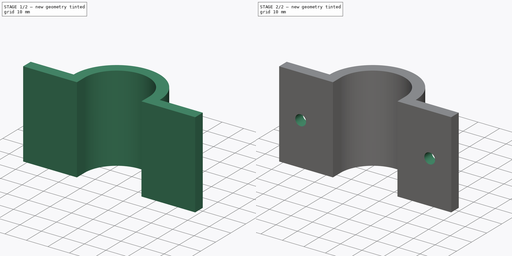
[diagram: build sequence overview — one tinted view per stage of 2, left to right]
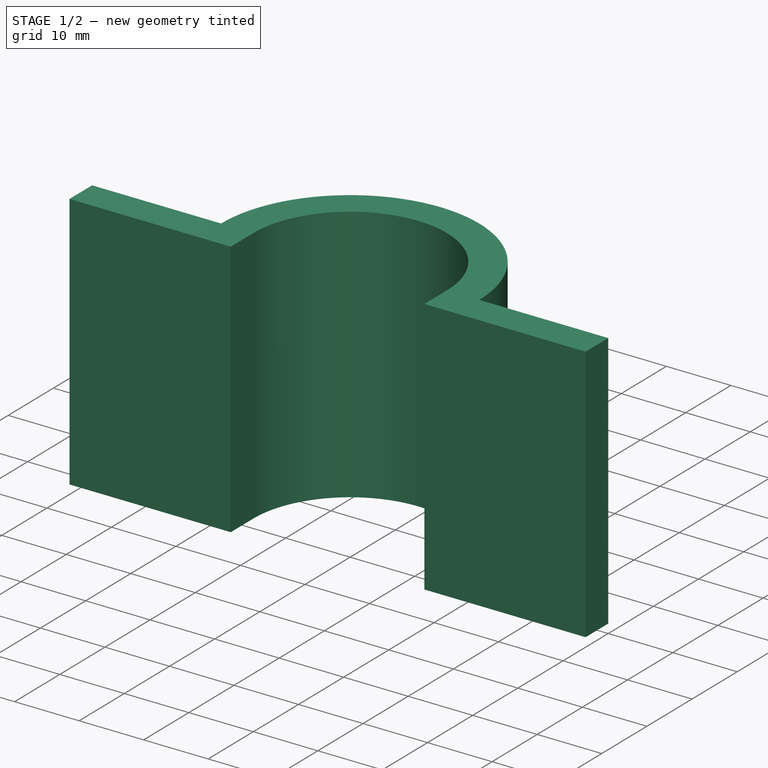
[diagram: stage 1 of 2 — iso view after this stage's code; geometry added in this stage tinted green]
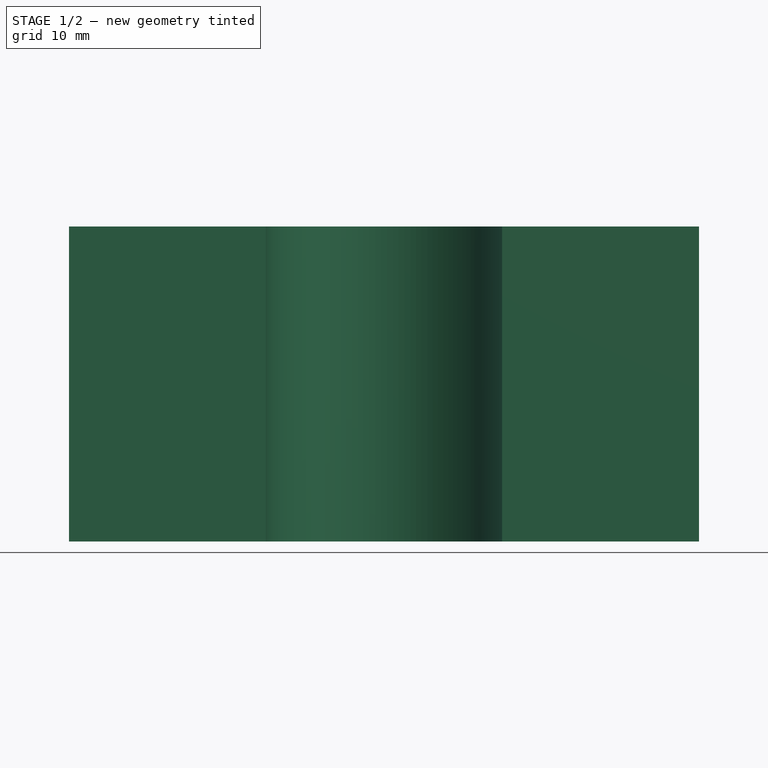
[diagram: stage 1 of 2 — front view after this stage's code; geometry added in this stage tinted green]
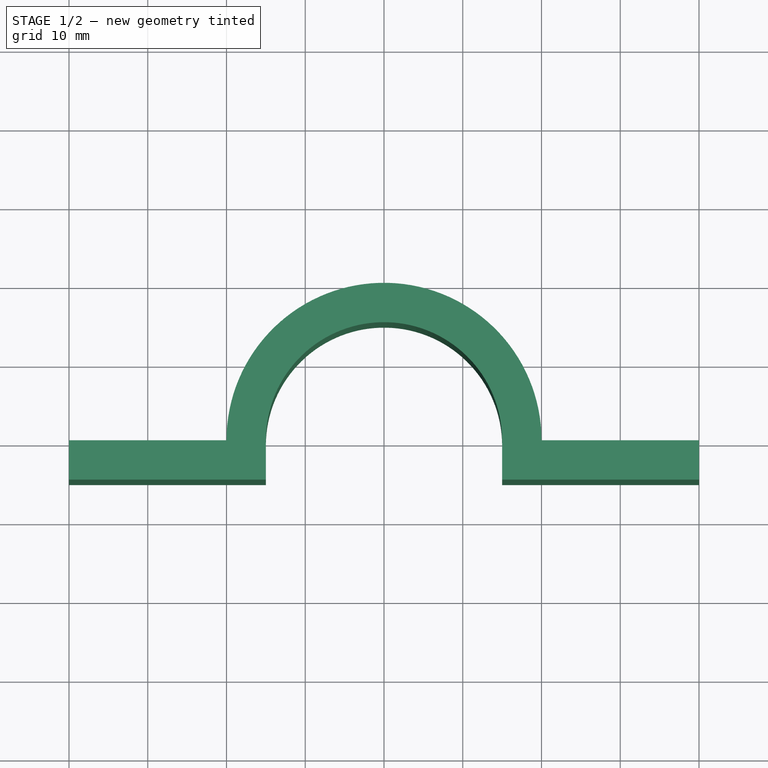
[diagram: stage 1 of 2 — top view after this stage's code; geometry added in this stage tinted green]
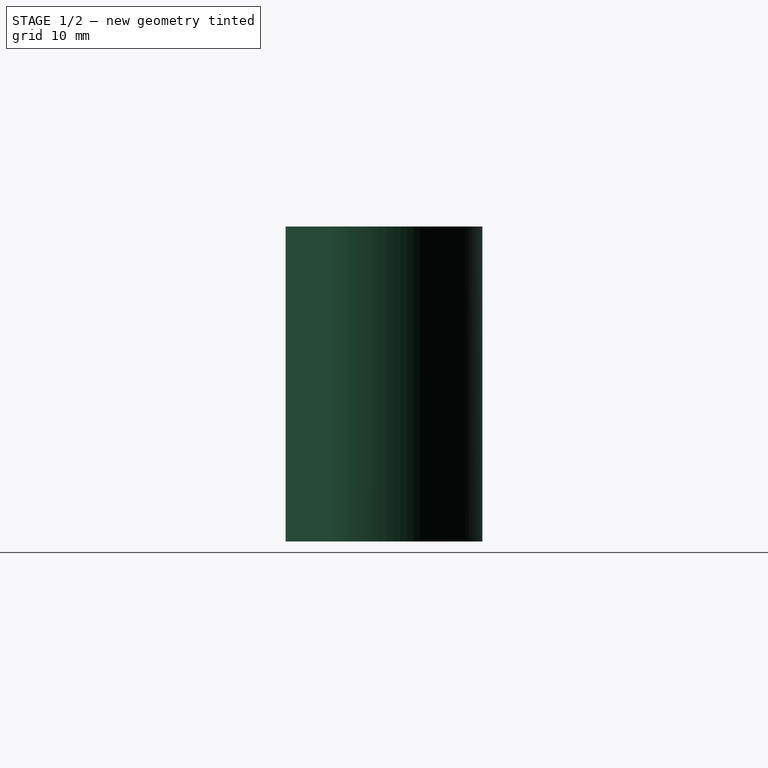
[diagram: stage 1 of 2 — right view after this stage's code; geometry added in this stage tinted green]
FCSTD DOCUMENT  (FreeCAD 0.21R33694 (Git))
Label: OJT1_T21P01.pecca
License: All rights reserved
LicenseURL: http://en.wikipedia.org/wiki/All_rights_reserved
objects: Sketcher::SketchObject×2, PartDesign::Pad×1, PartDesign::Pocket×1, PartDesign::Body×1, App::Part×1
note: 7 computed .brp shape members not serialized (recipe doc carries the construction recipe); baked Part::Feature solids carry a one-line shape summary decoded from their .brp

FEATURE [Sketcher::SketchObject] Sketch
  FullyConstrained = true
  MapMode = 5
  Support = -> [XY_Plane001]
  sketch-geometry (11):
    g0: ArcOfCircle CenterX=0 CenterY=0 CenterZ=0 NormalX=0 NormalY=0 NormalZ=1 AngleXU=0 Radius=15 StartAngle=0 EndAngle=3.14159
    g1: ArcOfCircle CenterX=0 CenterY=0 CenterZ=0 NormalX=0 NormalY=0 NormalZ=1 AngleXU=0 Radius=20 StartAngle=2e-16 EndAngle=3.14159
    g2: LineSegment StartX=20 StartY=3.7e-15 StartZ=0 EndX=40 EndY=3.7e-15 EndZ=0
    g3: LineSegment StartX=-20 StartY=0 StartZ=0 EndX=-40 EndY=0 EndZ=0
    g4: LineSegment StartX=-40 StartY=0 StartZ=0 EndX=-40 EndY=-5 EndZ=0
    g5: LineSegment StartX=-40 StartY=-5 StartZ=0 EndX=-15 EndY=-5 EndZ=0
    g6: LineSegment StartX=40 StartY=3.7e-15 StartZ=0 EndX=40 EndY=-5 EndZ=0
    g7: LineSegment StartX=40 StartY=-5 StartZ=0 EndX=15 EndY=-5 EndZ=0
    g8: LineSegment StartX=-15 StartY=-5 StartZ=0 EndX=-15 EndY=-4.4e-15 EndZ=0
    g9: LineSegment StartX=15 StartY=-5 StartZ=0 EndX=15 EndY=0 EndZ=0
    g10: LineSegment StartX=-15 StartY=-4.8e-15 StartZ=0 EndX=-20 EndY=0 EndZ=0
  constraints (30):
    c: Coincident(g0,g1)
    c: Coincident(g0,g-1)
    c: Horizontal(g2)
    c: Coincident(g1,g2)
    c: Perpendicular(g1,g2,g1) = 4.71239
    c: Horizontal(g3)
    c: Coincident(g3,g4)
    c: Vertical(g4)
    c: Coincident(g4,g5)
    c: Horizontal(g5)
    c: Coincident(g1,g3)
    c: Perpendicular(g1,g3)
    c: Coincident(g2,g6)
    c: Vertical(g6)
    c: Coincident(g6,g7)
    c: Horizontal(g7)
    c: Coincident(g8,g5)
    c: Vertical(g8)
    c: Coincident(g9,g7)
    c: Vertical(g9)
    c: Tangent(g0,g8) = 1.5708
    c: Tangent(g0,g9) = -1.5708
    c: Coincident(g10,g0)
    c: Coincident(g10,g1)
    c: Equal(g8,g9)
    c: Equal(g5,g7)
    c: Equal(g10,g8)
    c: DistanceX(g10,g10) = 5
    c: Radius(g0) = 15
    c: DistanceX(g3,g3) = 20
FEATURE [PartDesign::Pad] Pad
  Direction = (0,0,1)
  Length = 40
  Length2 = 10
  Profile = -> Sketch
  ReferenceAxis = -> Sketch [N_Axis]
  Refine = true
  Type = 0
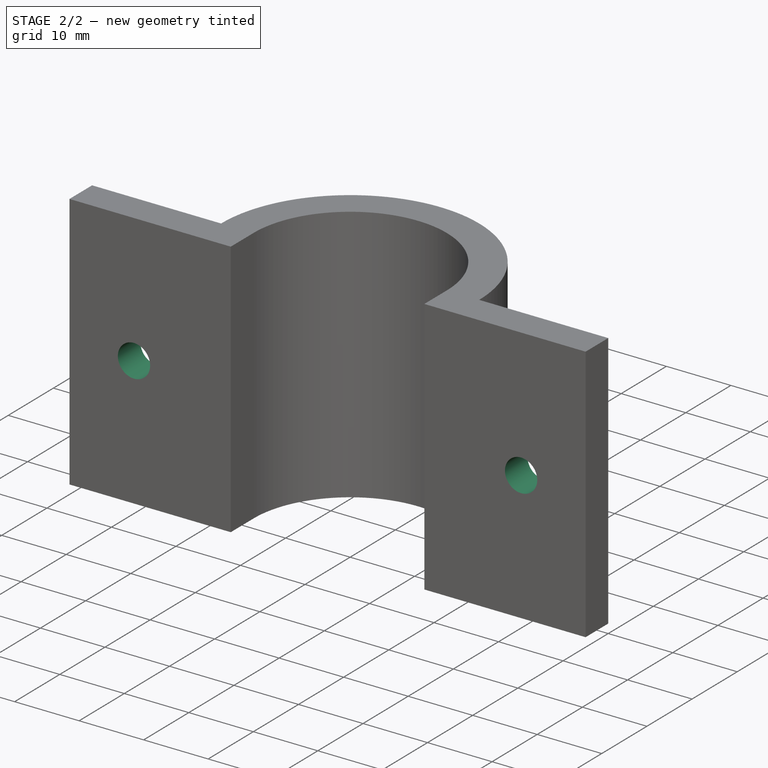
[diagram: stage 2 of 2 — iso view after this stage's code; geometry added in this stage tinted green]
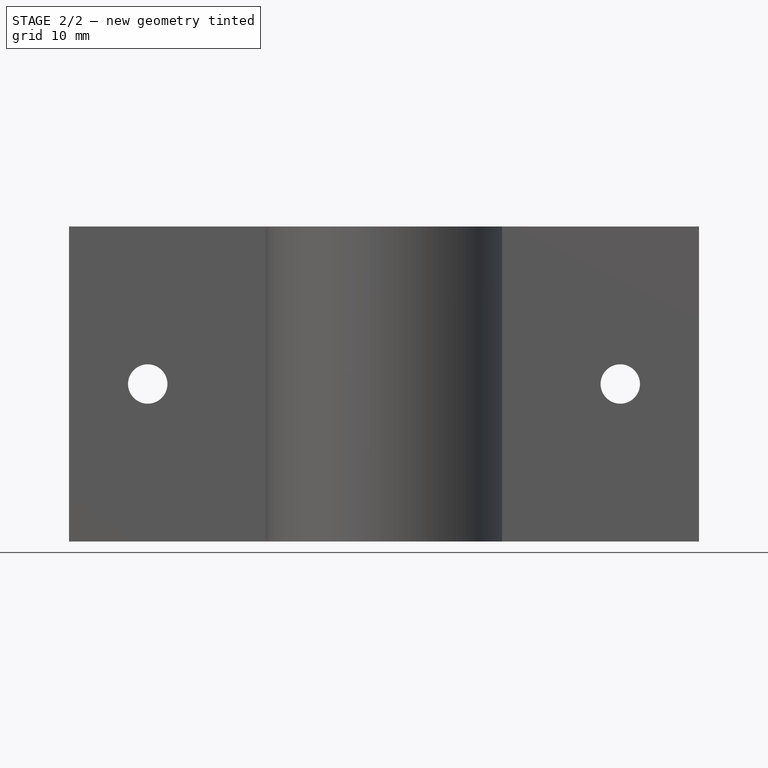
[diagram: stage 2 of 2 — front view after this stage's code; geometry added in this stage tinted green]
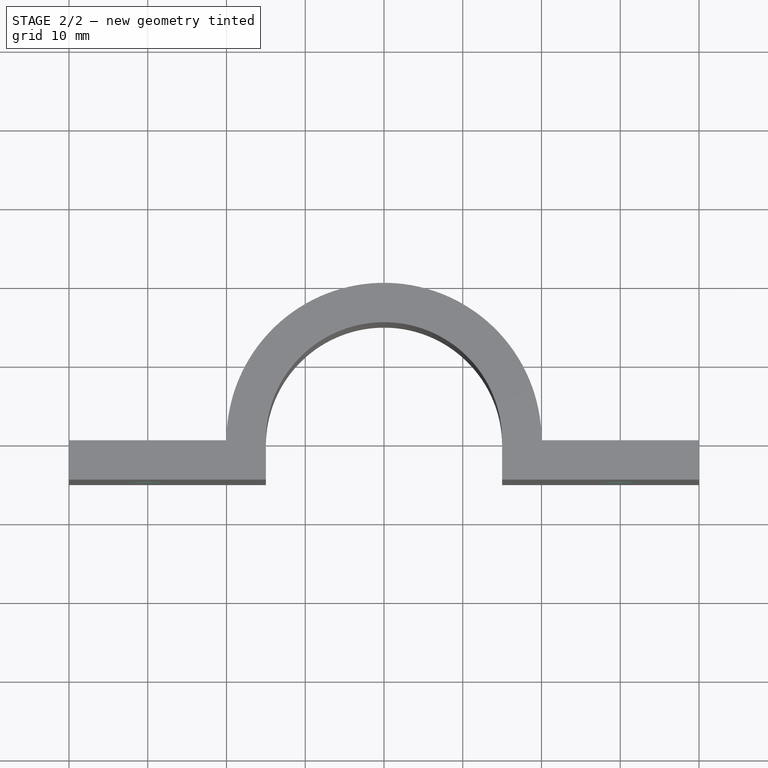
[diagram: stage 2 of 2 — top view after this stage's code; geometry added in this stage tinted green]
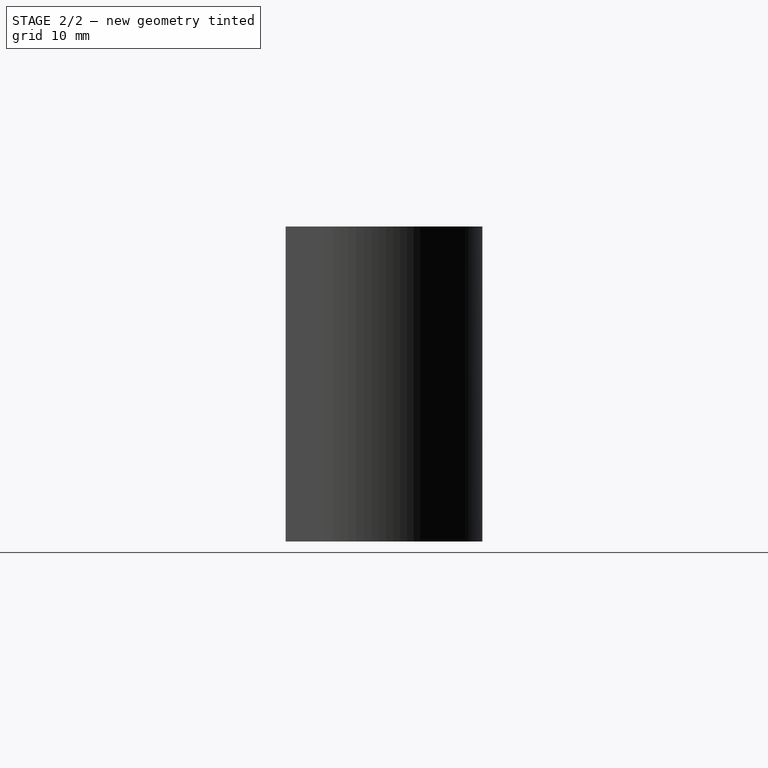
[diagram: stage 2 of 2 — right view after this stage's code; geometry added in this stage tinted green]
FEATURE [Sketcher::SketchObject] Sketch001
  FullyConstrained = false
  MapMode = 5
  Placement = pos=(0,3.7e-15,0) rot=(0,0.707107,0.707107;3.14159rad)
  Support = -> [Pad]
  sketch-geometry (2):
    g0: Circle CenterX=-30 CenterY=20 CenterZ=0 NormalX=0 NormalY=0 NormalZ=1 AngleXU=0 Radius=2.5
    g1: Circle CenterX=30 CenterY=20 CenterZ=0 NormalX=0 NormalY=0 NormalZ=1 AngleXU=0 Radius=2.5
  constraints (2):
    c: Diameter(g1) = 5
    c: Equal(g1,g0)
FEATURE [PartDesign::Pocket] Pocket
  BaseFeature = -> Pad
  Direction = (0,-1,2e-16)
  Length = 5
  Length2 = 5
  Profile = -> Sketch001
  ReferenceAxis = -> Sketch001 [N_Axis]
  Refine = true
  Type = 0
FEATURE [PartDesign::Body] Body  label="Cos"
  Group = -> [Sketch,Pad,Sketch001,Pocket]
  Origin = -> Origin001
  Tip = -> Pocket
FEATURE [App::Part] Part
  Group = -> [Body]
  Origin = -> Origin
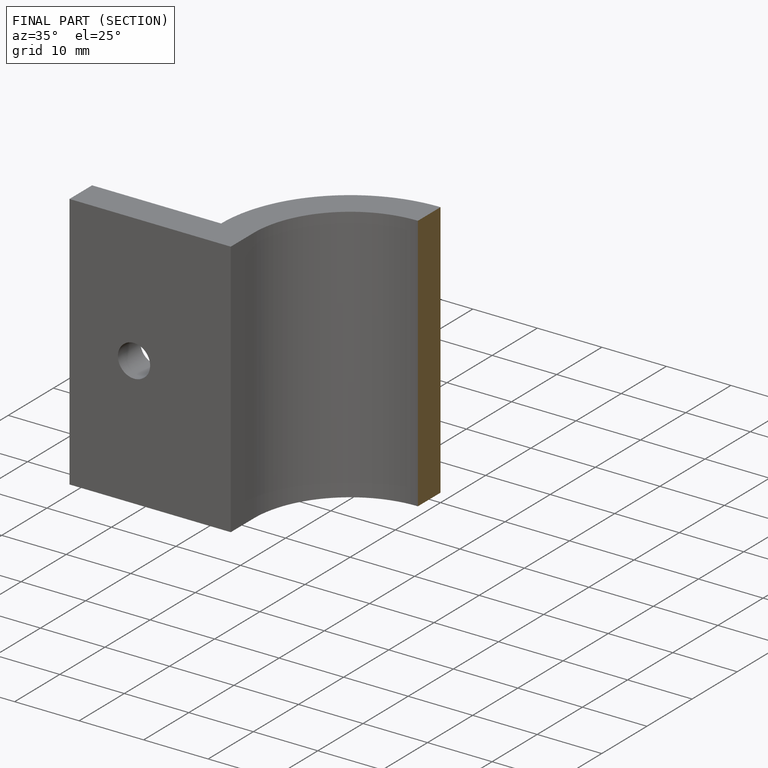
[diagram: finished part — half-section view (interior)]
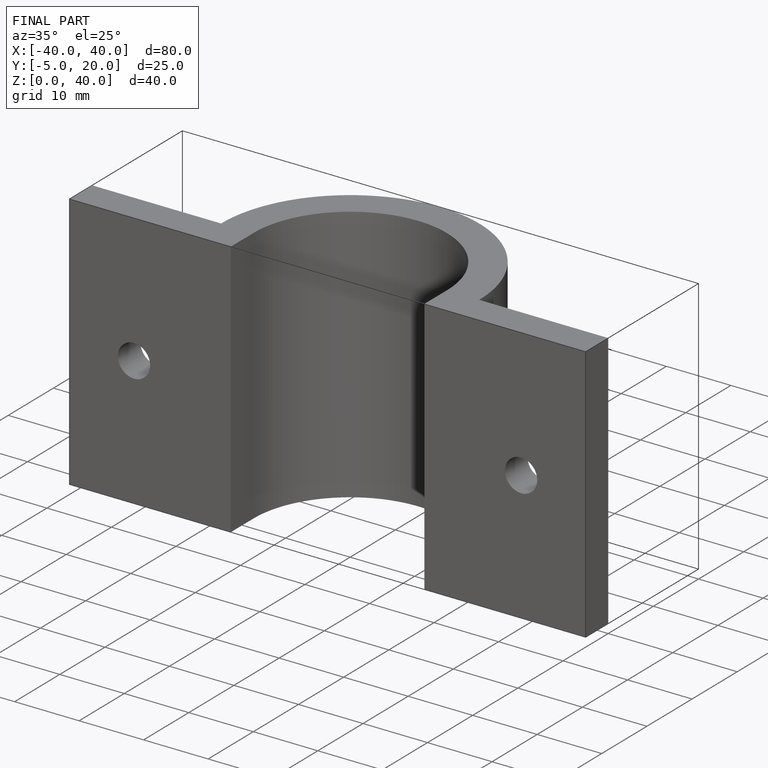
[diagram: finished part — iso view with bounding-box wireframe]
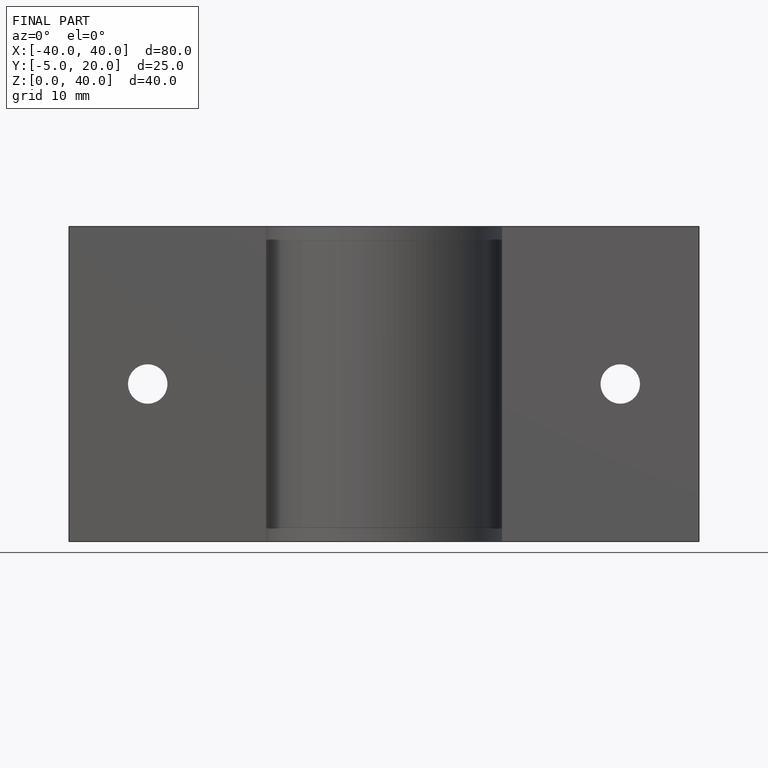
[diagram: finished part — front view with bounding-box wireframe]
